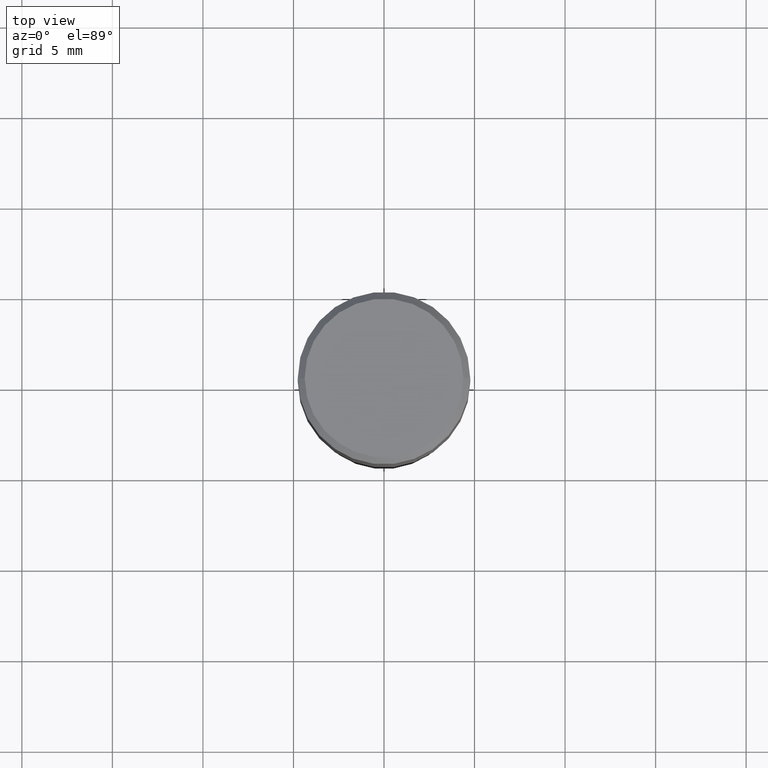
[diagram: clean part render]
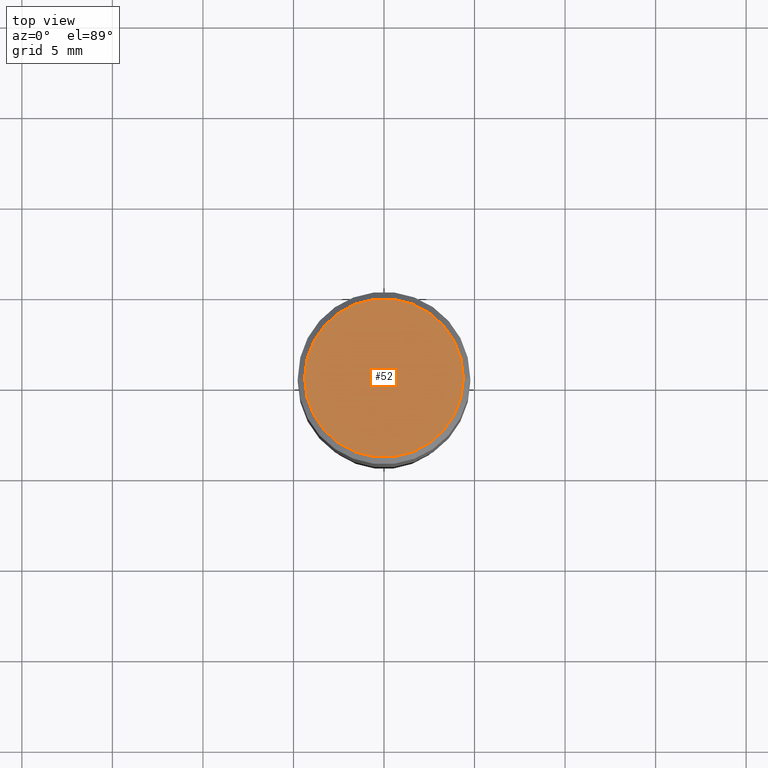
[diagram: same view with one face highlighted and labeled with its STEP entity id]
A machine part, top view. The second image highlights one B-rep face of the part: STEP entity #52.
In plain terms, the highlighted planar face has unit normal (0, -0, -1).
Its self-contained STEP definition (entity closure, byte-faithful):
#30 = DIRECTION ( 'NONE',  ( 1.000000000000000000, -6.982962677686266711E-15, 4.876912640186324808E-29 ) ) ;
#42 = DIRECTION ( 'NONE',  ( 2.438088387897960049E-29, -3.491481338843145188E-15, -1.000000000000000000 ) ) ;
#47 = EDGE_LOOP ( 'NONE', ( #181, #433 ) ) ;
#52 = ADVANCED_FACE ( 'NONE', ( #296 ), #410, .F. ) ;
#55 = AXIS2_PLACEMENT_3D ( 'NONE', #390, #60, #30 ) ;
#57 = CARTESIAN_POINT ( 'NONE',  ( 0.1725000000000000144, -1.261075749640199308E-15, -2.636744989014362231E-17 ) ) ;
#60 = DIRECTION ( 'NONE',  ( -2.445468806185136597E-29, 3.491481338843145583E-15, 1.000000000000000000 ) ) ;
#105 = CIRCLE ( 'NONE', #274, 0.1725000000000000144 ) ;
#112 = CIRCLE ( 'NONE', #55, 0.1725000000000000144 ) ;
#120 = DIRECTION ( 'NONE',  ( 1.000000000000000000, -6.982962677686266711E-15, 4.876912640186324808E-29 ) ) ;
#130 = VERTEX_POINT ( 'NONE', #382 ) ;
#181 = ORIENTED_EDGE ( 'NONE', *, *, #272, .T. ) ;
#211 = CARTESIAN_POINT ( 'NONE',  ( 1.204561061900881047E-15, 0.1725000000000000144, -6.154642558955188135E-16 ) ) ;
#219 = VERTEX_POINT ( 'NONE', #57 ) ;
#243 = AXIS2_PLACEMENT_3D ( 'NONE', #211, #42, #323 ) ;
#272 = EDGE_CURVE ( 'NONE', #130, #219, #105, .T. ) ;
#274 = AXIS2_PLACEMENT_3D ( 'NONE', #298, #449, #120 ) ;
#282 = EDGE_CURVE ( 'NONE', #219, #130, #112, .T. ) ;
#296 = FACE_OUTER_BOUND ( 'NONE', #47, .T. ) ;
#298 = CARTESIAN_POINT ( 'NONE',  ( 6.448077620501702025E-46, -9.206145924434830208E-32, -2.636744989015224123E-17 ) ) ;
#323 = DIRECTION ( 'NONE',  ( -1.000000000000000000, 6.982962677686265922E-15, -4.876176775795935793E-29 ) ) ;
#382 = CARTESIAN_POINT ( 'NONE',  ( -0.1725000000000000144, 1.230747171942204192E-15, -2.636744989016075847E-17 ) ) ;
#390 = CARTESIAN_POINT ( 'NONE',  ( 6.448077620501702025E-46, -9.206145924434830208E-32, -2.636744989015224123E-17 ) ) ;
#410 = PLANE ( 'NONE',  #243 ) ;
#433 = ORIENTED_EDGE ( 'NONE', *, *, #282, .T. ) ;
#449 = DIRECTION ( 'NONE',  ( -2.445468806185136597E-29, 3.491481338843145583E-15, 1.000000000000000000 ) ) ;